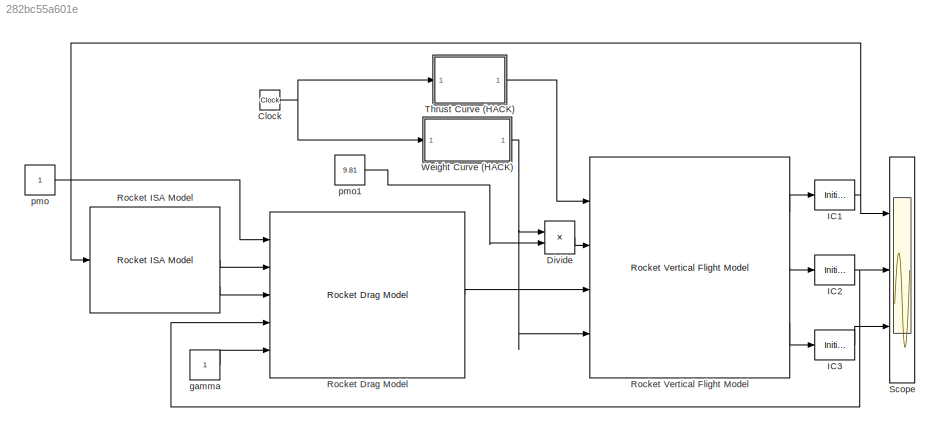
MODEL slx_282bc55a601e
KIND model
BLOCK [Clock] Clock
BLOCK [Product] Divide
  InputSameDT = off
  Inputs = */
  OutDataTypeStr = Inherit: Inherit via internal rule
  Ports = [2, 1]
  RndMeth = Floor
  SaturateOnIntegerOverflow = off
BLOCK [InitialCondition] IC1
BLOCK [InitialCondition] IC2
  Value = 0
BLOCK [InitialCondition] IC3
  Value = 0
BLOCK [Reference] Rocket Drag Model  REF=rocket_drag_library/Rocket Drag Model  (lib defined in slx_51275aa4cfd2)
  Ports = [5, 1]
  SourceBlock = rocket_drag_library/Rocket Drag Model
  SourceType = SubSystem
BLOCK [Reference] Rocket ISA Model  REF=rocket_isa_model_library/Rocket ISA Model  (lib defined in slx_4b2a796e4351)
  Ports = [1, 3]
  SourceBlock = rocket_isa_model_library/Rocket ISA Model
  SourceType = SubSystem
BLOCK [Reference] Rocket Vertical Flight Model  REF=rocket_vertical_flight_library/Rocket Vertical Flight Model  (lib defined in slx_f0a917acac91)
  Ports = [4, 3]
  SourceBlock = rocket_vertical_flight_library/Rocket Vertical Flight Model
  SourceType = SubSystem
BLOCK [Scope] Scope
  DataFormat = StructureWithTime
  Floating = off
  NumInputPorts = 3
  Ports = [3]
  SampleTime = 0
  ShowLegends = off
  YMax = 5~5~5
  YMin = -5~-5~-5
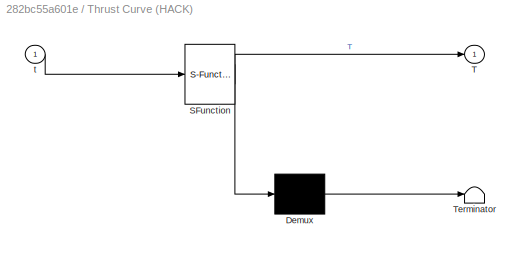
BLOCK [SubSystem] Thrust Curve (HACK)
  ErrorFcn = Stateflow.Translate.translate
  PermitHierarchicalResolution = ExplicitOnly
  Ports = [1, 1]
  RequestExecContextInheritance = off
  SFBlockType = MATLAB Function
  TreatAsAtomicUnit = on
BLOCK [Demux] Thrust Curve (HACK)/ Demux 
  Outputs = 1
  Ports = [1, 1]
BLOCK [S-Function] Thrust Curve (HACK)/ SFunction 
  EnableBusSupport = on
  FunctionName = sf_sfun
  PortCounts = [1 2]
  Ports = [1, 2]
  Tag = Stateflow S-Function Loop_TestModel 2
BLOCK [Terminator] Thrust Curve (HACK)/ Terminator 
BLOCK [Outport] Thrust Curve (HACK)/T
  IconDisplay = Port number
BLOCK [Inport] Thrust Curve (HACK)/t
  IconDisplay = Port number
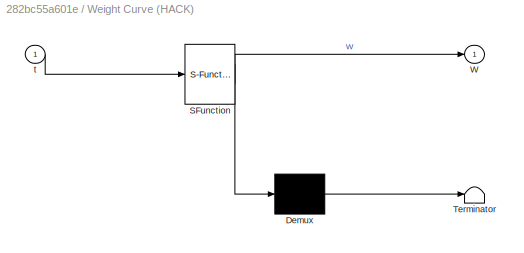
BLOCK [SubSystem] Weight Curve (HACK)
  ErrorFcn = Stateflow.Translate.translate
  PermitHierarchicalResolution = ExplicitOnly
  Ports = [1, 1]
  RequestExecContextInheritance = off
  SFBlockType = MATLAB Function
  TreatAsAtomicUnit = on
BLOCK [Demux] Weight Curve (HACK)/ Demux 
  Outputs = 1
  Ports = [1, 1]
BLOCK [S-Function] Weight Curve (HACK)/ SFunction 
  EnableBusSupport = on
  FunctionName = sf_sfun
  PortCounts = [1 2]
  Ports = [1, 2]
  Tag = Stateflow S-Function Loop_TestModel 1
BLOCK [Terminator] Weight Curve (HACK)/ Terminator 
BLOCK [Outport] Weight Curve (HACK)/W
  IconDisplay = Port number
BLOCK [Inport] Weight Curve (HACK)/t
  IconDisplay = Port number
BLOCK [Constant] gamma
BLOCK [Constant] pmo
BLOCK [Constant] pmo1
  Value = 9.81
NET Clock:1 -> Thrust Curve (HACK):1, Weight Curve (HACK):1
LINE Divide:1 -> Rocket Vertical Flight Model:2
NET IC1:1 -> Rocket ISA Model:1, Scope:1
NET IC2:1 -> Rocket Drag Model:4, Scope:2
LINE IC3:1 -> Scope:3
LINE Rocket Drag Model:1 -> Rocket Vertical Flight Model:3
LINE Rocket ISA Model:2 -> Rocket Drag Model:2
LINE Rocket ISA Model:3 -> Rocket Drag Model:3
LINE Rocket Vertical Flight Model:1 -> IC1:1
LINE Rocket Vertical Flight Model:2 -> IC2:1
LINE Rocket Vertical Flight Model:3 -> IC3:1
LINE Thrust Curve (HACK):1 -> Rocket Vertical Flight Model:1
NET Weight Curve (HACK):1 -> Divide:1, Rocket Vertical Flight Model:4
LINE gamma:1 -> Rocket Drag Model:5
LINE pmo1:1 -> Divide:2
LINE pmo:1 -> Rocket Drag Model:1
note: NET lines group one-source signal fan-out (src -> all destinations, sorted); 1:1 wires keep LINE
